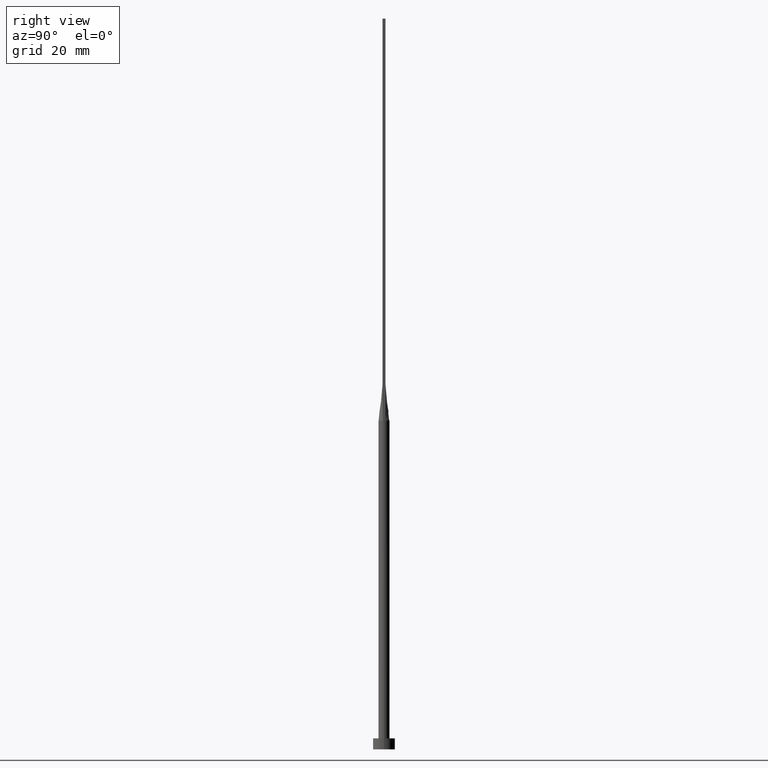
[diagram: clean part render]
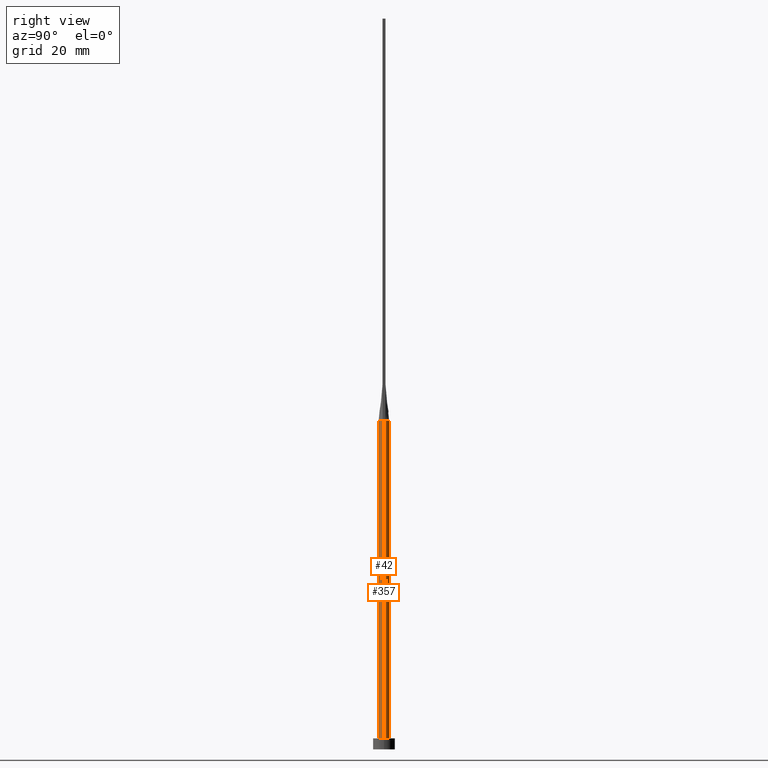
[diagram: same view with one multi-face feature highlighted, each face labeled with its STEP entity id]
A machine part, right view. The highlighted faces form ONE feature: a constant-radius fillet chain: 2 tangent blend faces with common blend radius 1.5 mm. The faces share edges in the B-rep.
Their STEP definitions:
[1] entity #357 (Cylinder):
#2 = CARTESIAN_POINT ( 'NONE',  ( 0.000000000000000000, 0.000000000000000000, 3.000000000000000000 ) ) ;
#11 = CARTESIAN_POINT ( 'NONE',  ( -1.442387148345315895, 0.4121110244020492197, 90.00000000000000000 ) ) ;
#17 = DIRECTION ( 'NONE',  ( -0.000000000000000000, -0.000000000000000000, -1.000000000000000000 ) ) ;
#36 = ORIENTED_EDGE ( 'NONE', *, *, #268, .F. ) ;
#43 = VECTOR ( 'NONE', #89, 1000.000000000000000 ) ;
#49 = CARTESIAN_POINT ( 'NONE',  ( -1.500000000000000222, 0.000000000000000000, 90.00000000000000000 ) ) ;
#53 = ORIENTED_EDGE ( 'NONE', *, *, #294, .F. ) ;
#61 = CARTESIAN_POINT ( 'NONE',  ( -0.1885753531885899226, 1.500000000000000888, 90.00000000000001421 ) ) ;
#63 = CARTESIAN_POINT ( 'NONE',  ( -1.212111761082482975, 0.8950936653899578266, 90.00000000000002842 ) ) ;
#70 = EDGE_CURVE ( 'NONE', #302, #371, #222, .T. ) ;
#73 = VERTEX_POINT ( 'NONE', #134 ) ;
#82 = DIRECTION ( 'NONE',  ( 0.000000000000000000, 0.000000000000000000, 1.000000000000000000 ) ) ;
#89 = DIRECTION ( 'NONE',  ( -0.000000000000000000, -0.000000000000000000, -1.000000000000000000 ) ) ;
#92 = B_SPLINE_CURVE_WITH_KNOTS ( 'NONE', 3,
 ( #193, #362, #151, #465, #372, #104, #319, #454, #196, #61, #290, #507, #321, #199, #63, #508, #111, #512 ),
 .UNSPECIFIED., .F., .F.,
 ( 4, 2, 2, 2, 2, 2, 2, 2, 4 ),
 ( 0.000000000000000000, 0.1250000000000000833, 0.2500000000000001665, 0.3750000000000001110, 0.5000000000000001110, 0.6250000000000002220, 0.7500000000000001110, 0.8750000000000001110, 1.000000000000000000 ),
 .UNSPECIFIED. ) ;
#97 = CIRCLE ( 'NONE', #242, 1.500000000000000222 ) ;
#102 = EDGE_CURVE ( 'NONE', #371, #197, #97, .T. ) ;
#104 = CARTESIAN_POINT ( 'NONE',  ( 0.8665786268839186235, 1.235433898681765008, 90.00000000000000000 ) ) ;
#111 = CARTESIAN_POINT ( 'NONE',  ( -1.409267053536706671, 0.5276477295819163027, 90.00000000000001421 ) ) ;
#117 = ORIENTED_EDGE ( 'NONE', *, *, #102, .T. ) ;
#128 = EDGE_LOOP ( 'NONE', ( #53, #214, #117, #36, #550, #159 ) ) ;
#129 = CIRCLE ( 'NONE', #516, 1.500000000000000222 ) ;
#134 = CARTESIAN_POINT ( 'NONE',  ( -1.500000000000000222, 8.735352324927310277E-17, 90.00000000000000000 ) ) ;
#143 = CARTESIAN_POINT ( 'NONE',  ( 0.000000000000000000, 0.000000000000000000, 90.00000000000000000 ) ) ;
#151 = CARTESIAN_POINT ( 'NONE',  ( 1.359280768448766663, 0.6502025712814714087, 89.99999999999998579 ) ) ;
#159 = ORIENTED_EDGE ( 'NONE', *, *, #384, .F. ) ;
#193 = CARTESIAN_POINT ( 'NONE',  ( 1.442362338805188937, 0.4121038472597355895, 90.00000000000000000 ) ) ;
#194 = AXIS2_PLACEMENT_3D ( 'NONE', #549, #246, #547 ) ;
#196 = CARTESIAN_POINT ( 'NONE',  ( 0.1885753531885901724, 1.500000000000000666, 90.00000000000001421 ) ) ;
#197 = VERTEX_POINT ( 'NONE', #407 ) ;
#199 = CARTESIAN_POINT ( 'NONE',  ( -1.114527776139989212, 1.017390422009414319, 90.00000000000004263 ) ) ;
#214 = ORIENTED_EDGE ( 'NONE', *, *, #70, .T. ) ;
#222 = LINE ( 'NONE', #269, #43 ) ;
#242 = AXIS2_PLACEMENT_3D ( 'NONE', #2, #82, #266 ) ;
#243 = CYLINDRICAL_SURFACE ( 'NONE', #576, 1.500000000000000222 ) ;
#246 = DIRECTION ( 'NONE',  ( 0.000000000000000000, 0.000000000000000000, 1.000000000000000000 ) ) ;
#253 = VERTEX_POINT ( 'NONE', #353 ) ;
#266 = DIRECTION ( 'NONE',  ( 1.000000000000000000, 0.000000000000000000, 0.000000000000000000 ) ) ;
#268 = EDGE_CURVE ( 'NONE', #73, #197, #538, .T. ) ;
#269 = CARTESIAN_POINT ( 'NONE',  ( 1.500000000000000222, 1.836970198721030181E-16, 90.00000000000000000 ) ) ;
#278 = DIRECTION ( 'NONE',  ( -0.000000000000000000, -0.000000000000000000, -1.000000000000000000 ) ) ;
#290 = CARTESIAN_POINT ( 'NONE',  ( -0.3767059690781846548, 1.463302066271692015, 90.00000000000000000 ) ) ;
#293 = DIRECTION ( 'NONE',  ( -1.000000000000000000, 0.000000000000000000, 0.000000000000000000 ) ) ;
#294 = EDGE_CURVE ( 'NONE', #302, #253, #129, .T. ) ;
#302 = VERTEX_POINT ( 'NONE', #311 ) ;
#305 = CIRCLE ( 'NONE', #194, 1.500000000000000222 ) ;
#308 = VECTOR ( 'NONE', #278, 1000.000000000000000 ) ;
#311 = CARTESIAN_POINT ( 'NONE',  ( 1.500000000000000000, -9.795443734464536283E-18, 90.00000000000000000 ) ) ;
#312 = DIRECTION ( 'NONE',  ( 0.000000000000000000, 0.000000000000000000, 1.000000000000000000 ) ) ;
#319 = CARTESIAN_POINT ( 'NONE',  ( 0.7158926189626808601, 1.330660769095147966, 89.99999999999998579 ) ) ;
#321 = CARTESIAN_POINT ( 'NONE',  ( -0.8665786268839184014, 1.235433898681765896, 90.00000000000001421 ) ) ;
#353 = CARTESIAN_POINT ( 'NONE',  ( 1.442362338805188937, 0.4121038472597355895, 90.00000000000000000 ) ) ;
#357 = ADVANCED_FACE ( 'NONE', ( #365 ), #243, .T. ) ;
#362 = CARTESIAN_POINT ( 'NONE',  ( 1.409267053536706671, 0.5276477295819161917, 90.00000000000001421 ) ) ;
#365 = FACE_OUTER_BOUND ( 'NONE', #128, .T. ) ;
#371 = VERTEX_POINT ( 'NONE', #413 ) ;
#372 = CARTESIAN_POINT ( 'NONE',  ( 1.114527776139990101, 1.017390422009413431, 90.00000000000002842 ) ) ;
#384 = EDGE_CURVE ( 'NONE', #253, #506, #92, .T. ) ;
#407 = CARTESIAN_POINT ( 'NONE',  ( -1.500000000000000222, 0.000000000000000000, 3.000000000000000000 ) ) ;
#413 = CARTESIAN_POINT ( 'NONE',  ( 1.500000000000000222, 1.836970198721030181E-16, 3.000000000000000000 ) ) ;
#415 = CARTESIAN_POINT ( 'NONE',  ( 0.000000000000000000, 0.000000000000000000, 90.00000000000000000 ) ) ;
#419 = EDGE_CURVE ( 'NONE', #506, #73, #305, .T. ) ;
#454 = CARTESIAN_POINT ( 'NONE',  ( 0.3767059690781852654, 1.463302066271692015, 90.00000000000001421 ) ) ;
#465 = CARTESIAN_POINT ( 'NONE',  ( 1.212111761082483197, 0.8950936653899574935, 89.99999999999998579 ) ) ;
#498 = DIRECTION ( 'NONE',  ( 1.000000000000000000, 0.000000000000000000, 0.000000000000000000 ) ) ;
#506 = VERTEX_POINT ( 'NONE', #11 ) ;
#507 = CARTESIAN_POINT ( 'NONE',  ( -0.7158926189626803049, 1.330660769095148410, 90.00000000000001421 ) ) ;
#508 = CARTESIAN_POINT ( 'NONE',  ( -1.359280768448767329, 0.6502025712814717417, 90.00000000000002842 ) ) ;
#512 = CARTESIAN_POINT ( 'NONE',  ( -1.442387148345315895, 0.4121110244020492197, 90.00000000000000000 ) ) ;
#516 = AXIS2_PLACEMENT_3D ( 'NONE', #143, #312, #498 ) ;
#538 = LINE ( 'NONE', #49, #308 ) ;
#547 = DIRECTION ( 'NONE',  ( 1.000000000000000000, 0.000000000000000000, 0.000000000000000000 ) ) ;
#549 = CARTESIAN_POINT ( 'NONE',  ( 0.000000000000000000, 0.000000000000000000, 90.00000000000000000 ) ) ;
#550 = ORIENTED_EDGE ( 'NONE', *, *, #419, .F. ) ;
#576 = AXIS2_PLACEMENT_3D ( 'NONE', #415, #17, #293 ) ;
[2] entity #42 (Cylinder):
#9 = EDGE_LOOP ( 'NONE', ( #295, #249, #155, #174, #18, #116 ) ) ;
#13 = DIRECTION ( 'NONE',  ( 0.000000000000000000, 0.000000000000000000, 1.000000000000000000 ) ) ;
#18 = ORIENTED_EDGE ( 'NONE', *, *, #268, .T. ) ;
#24 = DIRECTION ( 'NONE',  ( 0.000000000000000000, 0.000000000000000000, 1.000000000000000000 ) ) ;
#40 = DIRECTION ( 'NONE',  ( -0.000000000000000000, -0.000000000000000000, -1.000000000000000000 ) ) ;
#42 = ADVANCED_FACE ( 'NONE', ( #350 ), #95, .T. ) ;
#43 = VECTOR ( 'NONE', #89, 1000.000000000000000 ) ;
#49 = CARTESIAN_POINT ( 'NONE',  ( -1.500000000000000222, 0.000000000000000000, 90.00000000000000000 ) ) ;
#70 = EDGE_CURVE ( 'NONE', #302, #371, #222, .T. ) ;
#73 = VERTEX_POINT ( 'NONE', #134 ) ;
#77 = CIRCLE ( 'NONE', #161, 1.500000000000000222 ) ;
#84 = CIRCLE ( 'NONE', #442, 1.500000000000000222 ) ;
#87 = CARTESIAN_POINT ( 'NONE',  ( 0.000000000000000000, 0.000000000000000000, 90.00000000000000000 ) ) ;
#89 = DIRECTION ( 'NONE',  ( -0.000000000000000000, -0.000000000000000000, -1.000000000000000000 ) ) ;
#95 = CYLINDRICAL_SURFACE ( 'NONE', #275, 1.500000000000000222 ) ;
#108 = EDGE_CURVE ( 'NONE', #209, #218, #77, .T. ) ;
#116 = ORIENTED_EDGE ( 'NONE', *, *, #553, .T. ) ;
#120 = DIRECTION ( 'NONE',  ( 1.000000000000000000, 0.000000000000000000, 0.000000000000000000 ) ) ;
#134 = CARTESIAN_POINT ( 'NONE',  ( -1.500000000000000222, 8.735352324927310277E-17, 90.00000000000000000 ) ) ;
#148 = CIRCLE ( 'NONE', #411, 1.500000000000000222 ) ;
#155 = ORIENTED_EDGE ( 'NONE', *, *, #108, .F. ) ;
#160 = DIRECTION ( 'NONE',  ( 1.000000000000000000, 5.329070518200751394E-15, 0.000000000000000000 ) ) ;
#161 = AXIS2_PLACEMENT_3D ( 'NONE', #87, #500, #404 ) ;
#169 = CARTESIAN_POINT ( 'NONE',  ( 0.000000000000000000, 0.000000000000000000, 90.00000000000000000 ) ) ;
#173 = EDGE_CURVE ( 'NONE', #73, #209, #470, .T. ) ;
#174 = ORIENTED_EDGE ( 'NONE', *, *, #173, .F. ) ;
#197 = VERTEX_POINT ( 'NONE', #407 ) ;
#205 = CARTESIAN_POINT ( 'NONE',  ( 0.000000000000000000, 0.000000000000000000, 3.000000000000000000 ) ) ;
#209 = VERTEX_POINT ( 'NONE', #228 ) ;
#218 = VERTEX_POINT ( 'NONE', #578 ) ;
#221 = AXIS2_PLACEMENT_3D ( 'NONE', #289, #13, #460 ) ;
#222 = LINE ( 'NONE', #269, #43 ) ;
#228 = CARTESIAN_POINT ( 'NONE',  ( -1.442368678646663405, -0.4121057215347019853, 90.00000000000000000 ) ) ;
#249 = ORIENTED_EDGE ( 'NONE', *, *, #571, .F. ) ;
#268 = EDGE_CURVE ( 'NONE', #73, #197, #538, .T. ) ;
#269 = CARTESIAN_POINT ( 'NONE',  ( 1.500000000000000222, 1.836970198721030181E-16, 90.00000000000000000 ) ) ;
#275 = AXIS2_PLACEMENT_3D ( 'NONE', #343, #40, #432 ) ;
#278 = DIRECTION ( 'NONE',  ( -0.000000000000000000, -0.000000000000000000, -1.000000000000000000 ) ) ;
#289 = CARTESIAN_POINT ( 'NONE',  ( 0.000000000000000000, 0.000000000000000000, 90.00000000000000000 ) ) ;
#295 = ORIENTED_EDGE ( 'NONE', *, *, #70, .F. ) ;
#302 = VERTEX_POINT ( 'NONE', #311 ) ;
#308 = VECTOR ( 'NONE', #278, 1000.000000000000000 ) ;
#311 = CARTESIAN_POINT ( 'NONE',  ( 1.500000000000000000, -9.795443734464536283E-18, 90.00000000000000000 ) ) ;
#343 = CARTESIAN_POINT ( 'NONE',  ( 0.000000000000000000, 0.000000000000000000, 90.00000000000000000 ) ) ;
#350 = FACE_OUTER_BOUND ( 'NONE', #9, .T. ) ;
#371 = VERTEX_POINT ( 'NONE', #413 ) ;
#404 = DIRECTION ( 'NONE',  ( 1.000000000000000000, 0.000000000000000000, 0.000000000000000000 ) ) ;
#407 = CARTESIAN_POINT ( 'NONE',  ( -1.500000000000000222, 0.000000000000000000, 3.000000000000000000 ) ) ;
#411 = AXIS2_PLACEMENT_3D ( 'NONE', #205, #24, #120 ) ;
#413 = CARTESIAN_POINT ( 'NONE',  ( 1.500000000000000222, 1.836970198721030181E-16, 3.000000000000000000 ) ) ;
#432 = DIRECTION ( 'NONE',  ( -1.000000000000000000, 0.000000000000000000, 0.000000000000000000 ) ) ;
#442 = AXIS2_PLACEMENT_3D ( 'NONE', #169, #483, #160 ) ;
#460 = DIRECTION ( 'NONE',  ( 1.000000000000000000, 0.000000000000000000, 0.000000000000000000 ) ) ;
#470 = CIRCLE ( 'NONE', #221, 1.500000000000000222 ) ;
#483 = DIRECTION ( 'NONE',  ( 0.000000000000000000, 0.000000000000000000, 1.000000000000000000 ) ) ;
#500 = DIRECTION ( 'NONE',  ( 0.000000000000000000, 0.000000000000000000, 1.000000000000000000 ) ) ;
#538 = LINE ( 'NONE', #49, #308 ) ;
#553 = EDGE_CURVE ( 'NONE', #197, #371, #148, .T. ) ;
#571 = EDGE_CURVE ( 'NONE', #218, #302, #84, .T. ) ;
#578 = CARTESIAN_POINT ( 'NONE',  ( 1.442393550978850802, -0.4121129214357137083, 90.00000000000000000 ) ) ;